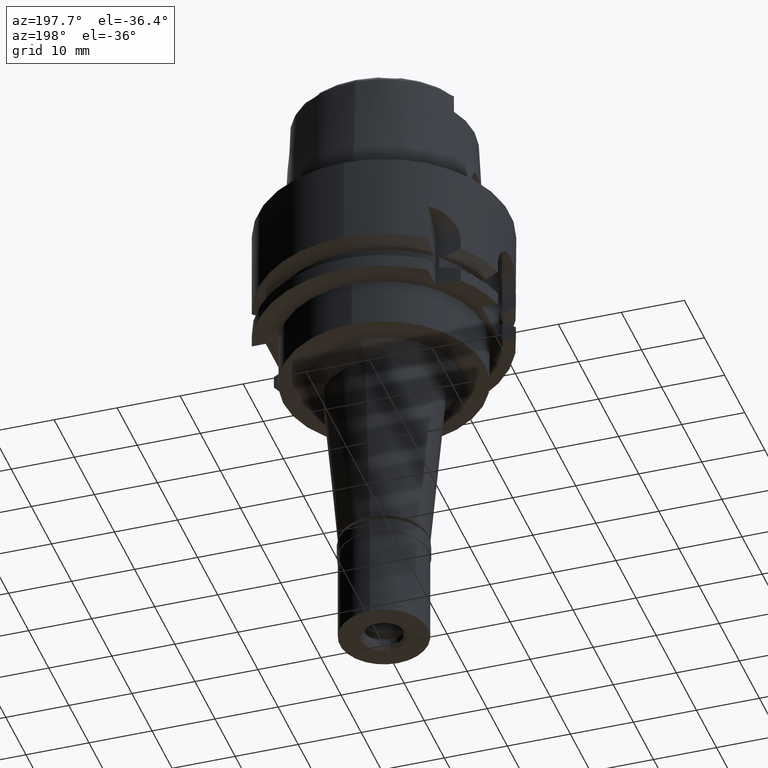
[diagram: clean part render]
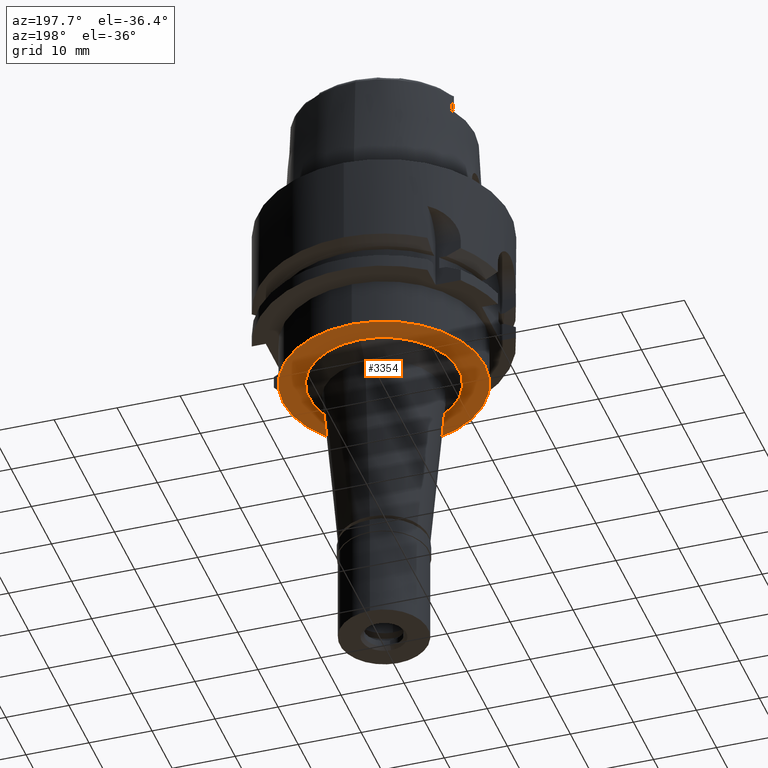
[diagram: same view with one face highlighted and labeled with its STEP entity id]
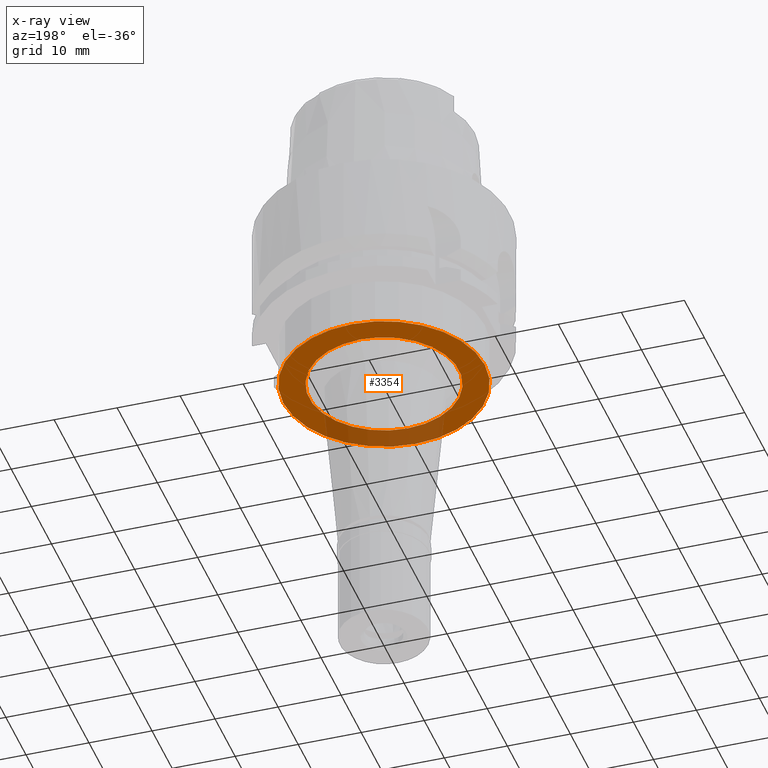
[diagram: x-ray of the same camera — body ghosted, the highlighted face saturated]
A machine part, auxiliary view. The second image highlights one B-rep face of the part: STEP entity #3354.
The next image is the same camera in x-ray: the body ghosted, the highlighted face saturated — about 22% of this face is hidden behind the body in this view.
In plain terms, the highlighted planar face has unit normal (0, 0, -1).
Its self-contained STEP definition (entity closure, byte-faithful):
#27 = CIRCLE ( 'NONE', #5068, 16.00000000000000000 ) ;
#80 = ORIENTED_EDGE ( 'NONE', *, *, #2284, .F. ) ;
#267 = VERTEX_POINT ( 'NONE', #3805 ) ;
#270 = DIRECTION ( 'NONE',  ( 0.0000000000000000000, 0.0000000000000000000, -1.000000000000000000 ) ) ;
#290 = DIRECTION ( 'NONE',  ( 0.0000000000000000000, 0.0000000000000000000, -1.000000000000000000 ) ) ;
#418 = CARTESIAN_POINT ( 'NONE',  ( 0.0000000000000000000, 1.525297588337999954E-14, -27.50000000000000000 ) ) ;
#433 = ORIENTED_EDGE ( 'NONE', *, *, #4111, .F. ) ;
#582 = CARTESIAN_POINT ( 'NONE',  ( 0.0000000000000000000, 11.88844051426000092, -27.50000000000000000 ) ) ;
#643 = DIRECTION ( 'NONE',  ( 0.0000000000000000000, -1.000000000000000000, 0.0000000000000000000 ) ) ;
#726 = EDGE_CURVE ( 'NONE', #4347, #3665, #27, .T. ) ;
#823 = EDGE_CURVE ( 'NONE', #267, #2199, #5233, .T. ) ;
#1012 = PLANE ( 'NONE',  #3980 ) ;
#1218 = CIRCLE ( 'NONE', #3604, 16.00000000000000000 ) ;
#1239 = CARTESIAN_POINT ( 'NONE',  ( 0.0000000000000000000, 0.0000000000000000000, -27.50000000000000000 ) ) ;
#1909 = FACE_BOUND ( 'NONE', #2656, .T. ) ;
#1989 = AXIS2_PLACEMENT_3D ( 'NONE', #1239, #4075, #2477 ) ;
#2056 = CARTESIAN_POINT ( 'NONE',  ( 0.0000000000000000000, 16.00000000000000000, -27.50000000000000000 ) ) ;
#2199 = VERTEX_POINT ( 'NONE', #582 ) ;
#2284 = EDGE_CURVE ( 'NONE', #2199, #267, #3814, .T. ) ;
#2370 = CARTESIAN_POINT ( 'NONE',  ( 0.0000000000000000000, -16.00000000000000000, -27.50000000000000000 ) ) ;
#2421 = DIRECTION ( 'NONE',  ( 0.0000000000000000000, -1.000000000000000000, 0.0000000000000000000 ) ) ;
#2477 = DIRECTION ( 'NONE',  ( 0.0000000000000000000, -1.000000000000000000, 0.0000000000000000000 ) ) ;
#2656 = EDGE_LOOP ( 'NONE', ( #80, #4031 ) ) ;
#2689 = FACE_OUTER_BOUND ( 'NONE', #3286, .T. ) ;
#3080 = DIRECTION ( 'NONE',  ( 0.0000000000000000000, 1.000000000000000000, 0.0000000000000000000 ) ) ;
#3286 = EDGE_LOOP ( 'NONE', ( #433, #4166 ) ) ;
#3354 = ADVANCED_FACE ( 'NONE', ( #2689, #1909 ), #1012, .T. ) ;
#3604 = AXIS2_PLACEMENT_3D ( 'NONE', #418, #4369, #4000 ) ;
#3665 = VERTEX_POINT ( 'NONE', #2056 ) ;
#3805 = CARTESIAN_POINT ( 'NONE',  ( 0.0000000000000000000, -11.88844051426000092, -27.50000000000000000 ) ) ;
#3814 = CIRCLE ( 'NONE', #4074, 11.88844051426000092 ) ;
#3980 = AXIS2_PLACEMENT_3D ( 'NONE', #4300, #270, #643 ) ;
#4000 = DIRECTION ( 'NONE',  ( 0.0000000000000000000, 1.000000000000000000, 0.0000000000000000000 ) ) ;
#4031 = ORIENTED_EDGE ( 'NONE', *, *, #823, .F. ) ;
#4074 = AXIS2_PLACEMENT_3D ( 'NONE', #4659, #290, #3080 ) ;
#4075 = DIRECTION ( 'NONE',  ( 0.0000000000000000000, 0.0000000000000000000, -1.000000000000000000 ) ) ;
#4111 = EDGE_CURVE ( 'NONE', #3665, #4347, #1218, .T. ) ;
#4166 = ORIENTED_EDGE ( 'NONE', *, *, #726, .F. ) ;
#4300 = CARTESIAN_POINT ( 'NONE',  ( 0.0000000000000000000, 0.0000000000000000000, -27.50000000000000000 ) ) ;
#4347 = VERTEX_POINT ( 'NONE', #2370 ) ;
#4369 = DIRECTION ( 'NONE',  ( 0.0000000000000000000, 0.0000000000000000000, 1.000000000000000000 ) ) ;
#4511 = DIRECTION ( 'NONE',  ( 0.0000000000000000000, 0.0000000000000000000, 1.000000000000000000 ) ) ;
#4659 = CARTESIAN_POINT ( 'NONE',  ( 0.0000000000000000000, 0.0000000000000000000, -27.50000000000000000 ) ) ;
#4886 = CARTESIAN_POINT ( 'NONE',  ( 0.0000000000000000000, 1.525297588337999954E-14, -27.50000000000000000 ) ) ;
#5068 = AXIS2_PLACEMENT_3D ( 'NONE', #4886, #4511, #2421 ) ;
#5233 = CIRCLE ( 'NONE', #1989, 11.88844051426000092 ) ;